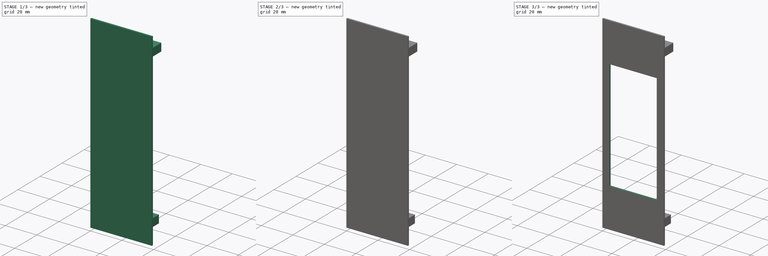
[diagram: build sequence overview — one tinted view per stage of 3, left to right]
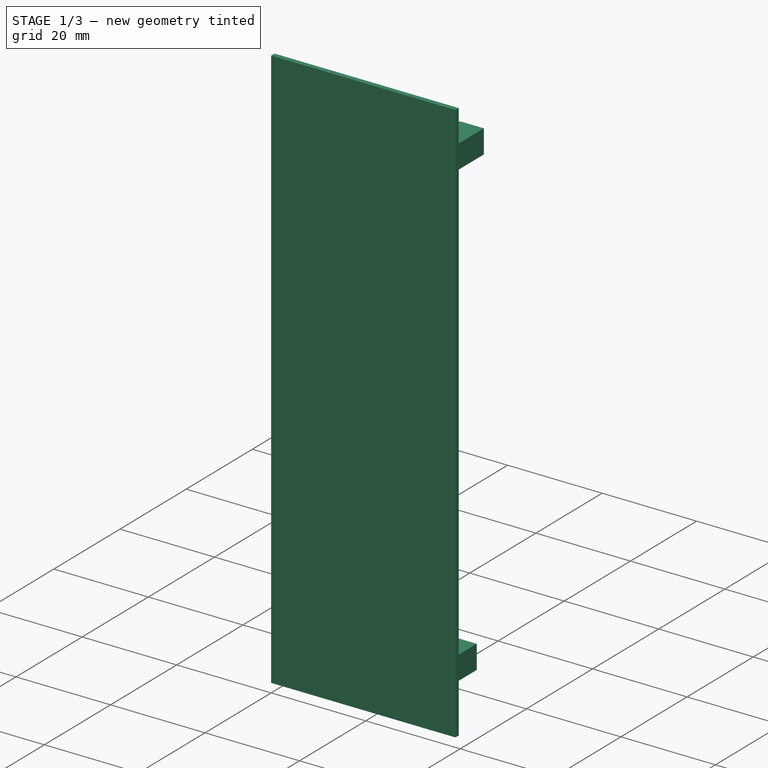
[diagram: stage 1 of 3 — iso view after this stage's code; geometry added in this stage tinted green]
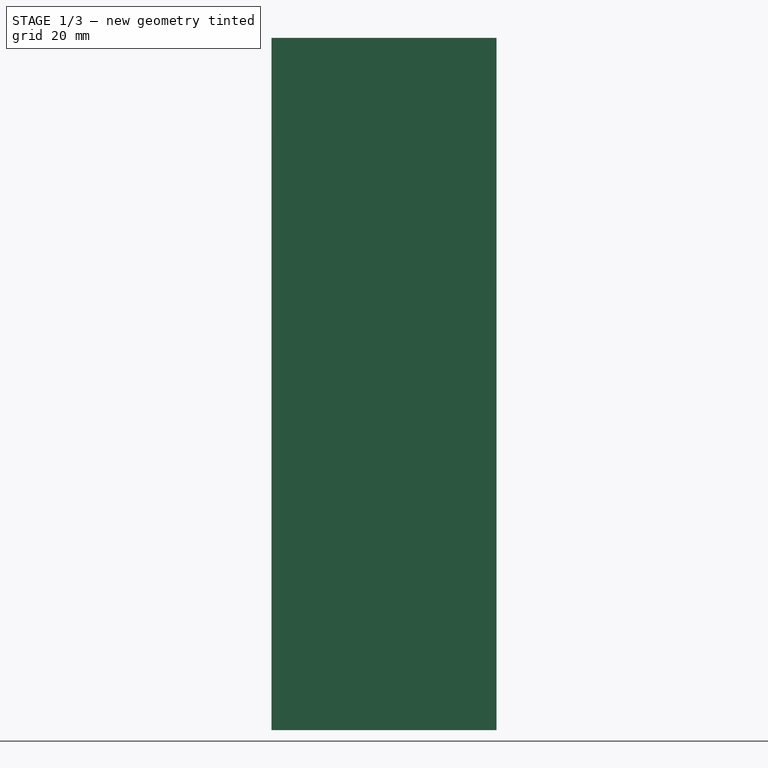
[diagram: stage 1 of 3 — front view after this stage's code; geometry added in this stage tinted green]
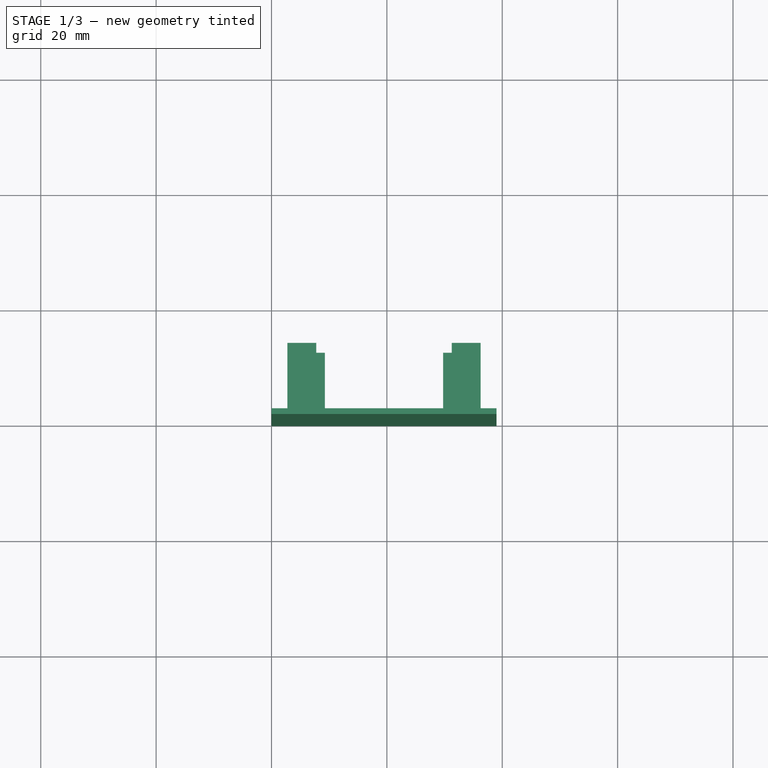
[diagram: stage 1 of 3 — top view after this stage's code; geometry added in this stage tinted green]
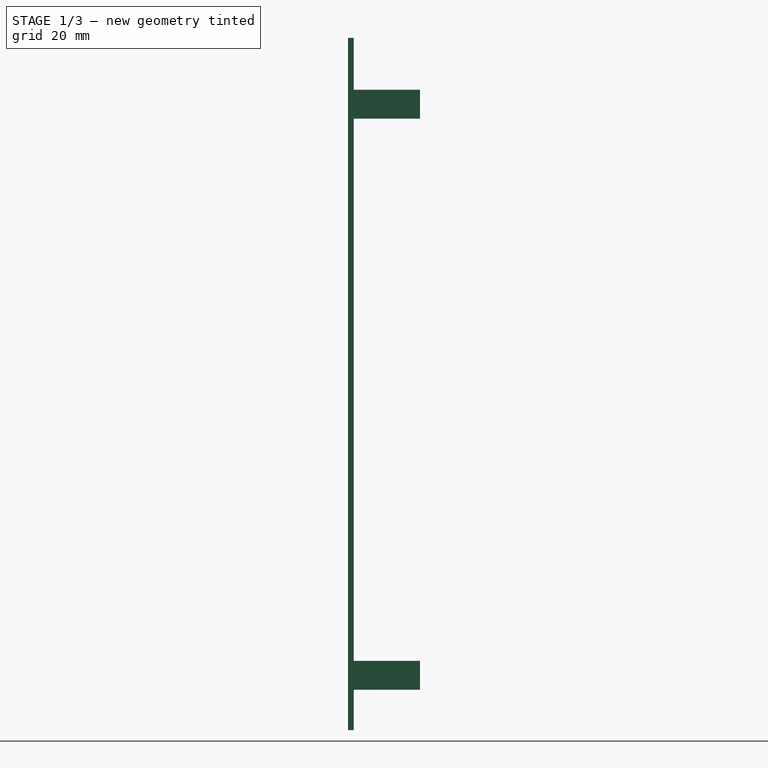
[diagram: stage 1 of 3 — right view after this stage's code; geometry added in this stage tinted green]
FCSTD DOCUMENT  (FreeCAD 0.16R6712 (Git))
Label: Support_Servo_Arrieres
License: All rights reserved
LicenseURL: http://en.wikipedia.org/wiki/All_rights_reserved
objects: Sketcher::SketchObject×5, PartDesign::Pocket×3, PartDesign::Pad×2
note: 15 computed .brp shape members not serialized (recipe doc carries the construction recipe); baked Part::Feature solids carry a one-line shape summary decoded from their .brp

FEATURE [Sketcher::SketchObject] Sketch
  sketch-geometry (4):
    g0: LineSegment StartX=0 StartY=0 StartZ=0 EndX=39 EndY=0 EndZ=0
    g1: LineSegment StartX=39 StartY=0 StartZ=0 EndX=39 EndY=1 EndZ=0
    g2: LineSegment StartX=39 StartY=1 StartZ=0 EndX=0 EndY=1 EndZ=0
    g3: LineSegment StartX=0 StartY=1 StartZ=0 EndX=0 EndY=0 EndZ=0
  constraints (11):
    c: Coincident(g0,g1)
    c: Coincident(g1,g2)
    c: Coincident(g2,g3)
    c: Coincident(g3,g0)
    c: Horizontal(g0)
    c: Horizontal(g2)
    c: Vertical(g1)
    c: Vertical(g3)
    c: Coincident(g0,g-1)
    c: DistanceY(g3,g3) = 1
    c: DistanceX(g2,g2) = 39
FEATURE [PartDesign::Pad] Pad
  Length = 120
  Length2 = 100
  Sketch = -> Sketch
  Type = 0
FEATURE [Sketcher::SketchObject] Sketch001
  ExternalGeometry = -> [Pad]
  Placement = pos=(0,1,0) rot=(0,0.707107,0.707107;3.14159rad)
  Support = -> Pad [Face3]
  sketch-geometry (19):
    g0: LineSegment StartX=-36.25 StartY=111 StartZ=0 EndX=-31.25 EndY=111 EndZ=0
    g1: LineSegment StartX=-31.25 StartY=111 StartZ=0 EndX=-31.25 EndY=106 EndZ=0
    g2: LineSegment StartX=-31.25 StartY=106 StartZ=0 EndX=-36.25 EndY=106 EndZ=0
    g3: LineSegment StartX=-36.25 StartY=106 StartZ=0 EndX=-36.25 EndY=111 EndZ=0
    g4: LineSegment StartX=-2.75 StartY=111 StartZ=0 EndX=-7.75 EndY=111 EndZ=0
    g5: LineSegment StartX=-7.75 StartY=111 StartZ=0 EndX=-7.75 EndY=106 EndZ=0
    g6: LineSegment StartX=-7.75 StartY=106 StartZ=0 EndX=-2.75 EndY=106 EndZ=0
    g7: LineSegment StartX=-2.75 StartY=106 StartZ=0 EndX=-2.75 EndY=111 EndZ=0
    g8: LineSegment StartX=-34.75 StartY=12 StartZ=0 EndX=-29.75 EndY=12 EndZ=0
    g9: LineSegment StartX=-29.75 StartY=12 StartZ=0 EndX=-29.75 EndY=7 EndZ=0
    g10: LineSegment StartX=-29.75 StartY=7 StartZ=0 EndX=-34.75 EndY=7 EndZ=0
    g11: LineSegment StartX=-34.75 StartY=7 StartZ=0 EndX=-34.75 EndY=12 EndZ=0
    g12: LineSegment StartX=-9.25 StartY=12 StartZ=0 EndX=-4.25 EndY=12 EndZ=0
    g13: LineSegment StartX=-4.25 StartY=12 StartZ=0 EndX=-4.25 EndY=7 EndZ=0
    g14: LineSegment StartX=-4.25 StartY=7 StartZ=0 EndX=-9.25 EndY=7 EndZ=0
    g15: LineSegment StartX=-9.25 StartY=7 StartZ=0 EndX=-9.25 EndY=12 EndZ=0
    g16: LineSegment [constr] StartX=-31.25 StartY=111 StartZ=0 EndX=-2.75 EndY=111 EndZ=0
    g17: LineSegment [constr] StartX=-19.5 StartY=120 StartZ=0 EndX=-19.5 EndY=0 EndZ=0
    g18: LineSegment [constr] StartX=-29.75 StartY=7 StartZ=0 EndX=-9.25 EndY=7 EndZ=0
  constraints (55):
    c: Coincident(g0,g1)
    c: Coincident(g1,g2)
    c: Coincident(g2,g3)
    c: Coincident(g3,g0)
    c: Horizontal(g0)
    c: Horizontal(g2)
    c: Vertical(g1)
    c: Vertical(g3)
    c: Coincident(g4,g5)
    c: Coincident(g5,g6)
    c: Coincident(g6,g7)
    c: Coincident(g7,g4)
    c: Horizontal(g4)
    c: Horizontal(g6)
    c: Vertical(g5)
    c: Vertical(g7)
    c: Coincident(g8,g9)
    c: Coincident(g9,g10)
    c: Coincident(g10,g11)
    c: Coincident(g11,g8)
    c: Horizontal(g8)
    c: Horizontal(g10)
    c: Vertical(g9)
    c: Vertical(g11)
    c: Coincident(g12,g13)
    c: Coincident(g13,g14)
    c: Coincident(g14,g15)
    c: Coincident(g15,g12)
    c: Horizontal(g12)
    c: Horizontal(g14)
    c: Vertical(g13)
    c: Vertical(g15)
    c: Coincident(g16,g0)
    c: Coincident(g16,g4)
    c: Horizontal(g16)
    c: DistanceY(g0,g-3) = 9
    c: PointOnObject(g17,g-3)
    c: PointOnObject(g17,g-1)
    c: Symmetric(g-3,g-3,g17)
    c: Symmetric(g4,g0,g17)
    c: DistanceX(g0,g0) = 5
    c: DistanceX(g4,g4) = 5
    c: DistanceY(g1,g1) = 5
    c: DistanceY(g5,g5) = 5
    c: DistanceX(g10,g10) = 5
    c: DistanceX(g14,g14) = 5
    c: DistanceY(g9,g9) = 5
    c: DistanceY(g13,g13) = 5
    c: Coincident(g18,g9)
    c: Coincident(g18,g14)
    c: Horizontal(g18)
    c: Symmetric(g9,g14,g17)
    c: DistanceX(g18,g18) = 20.5
    c: DistanceX(g0,g4) = 23.5
    c: DistanceY(g17,g9) = 7
FEATURE [PartDesign::Pad] Pad001
  Length = 11.5
  Length2 = 100
  Sketch = -> Sketch001
  Type = 0
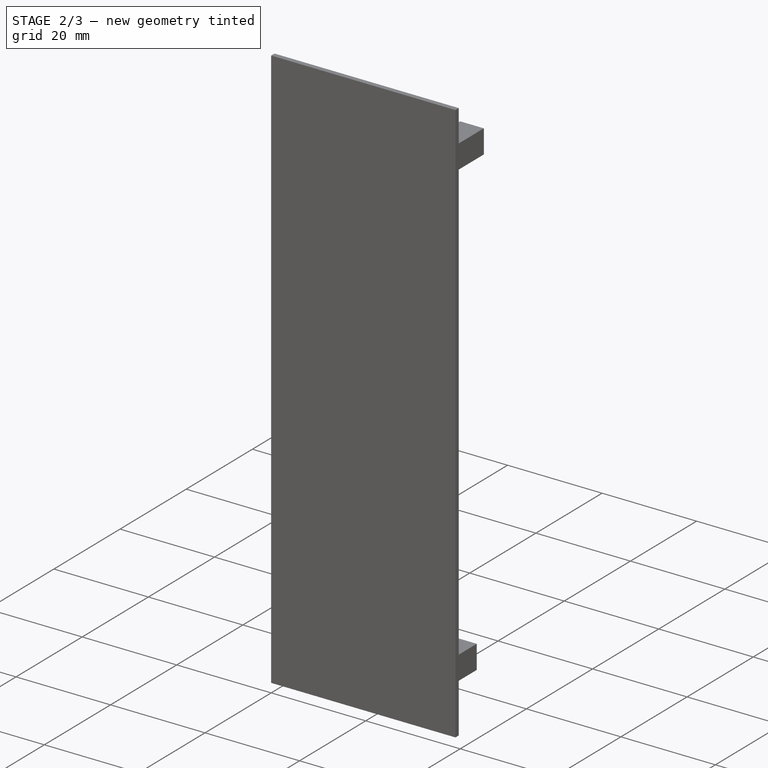
[diagram: stage 2 of 3 — iso view after this stage's code; geometry added in this stage tinted green]
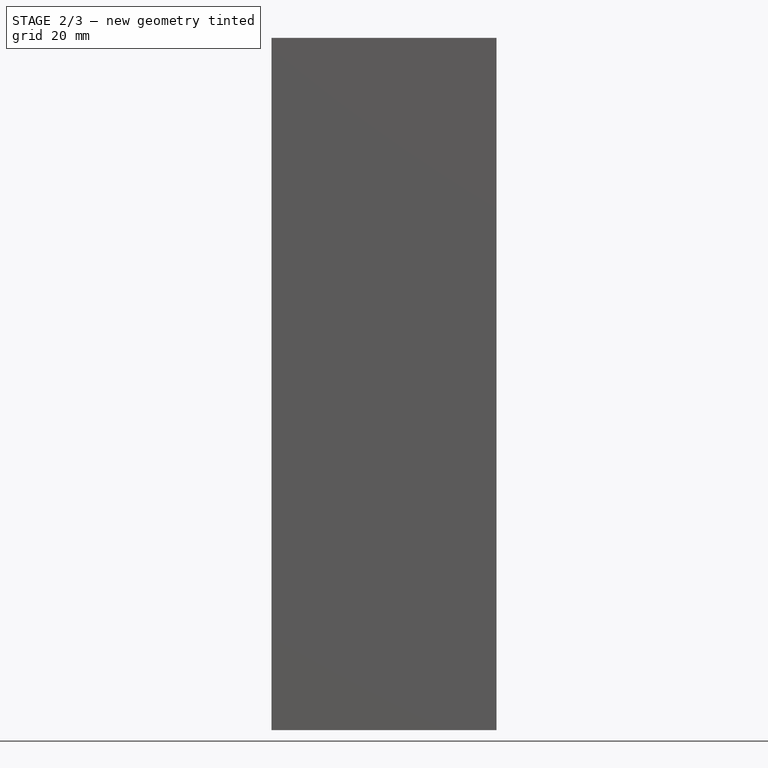
[diagram: stage 2 of 3 — front view after this stage's code; geometry added in this stage tinted green]
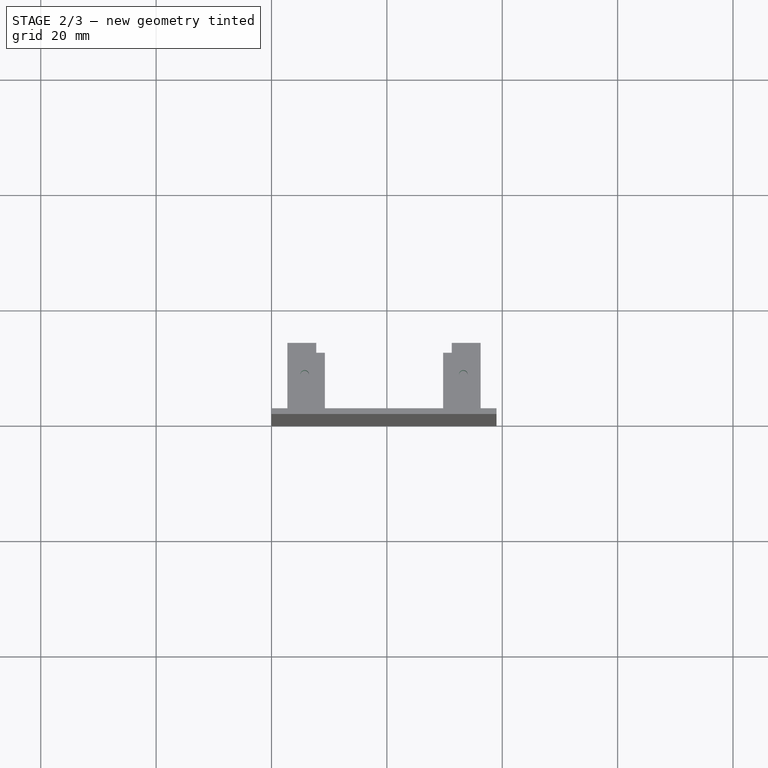
[diagram: stage 2 of 3 — top view after this stage's code; geometry added in this stage tinted green]
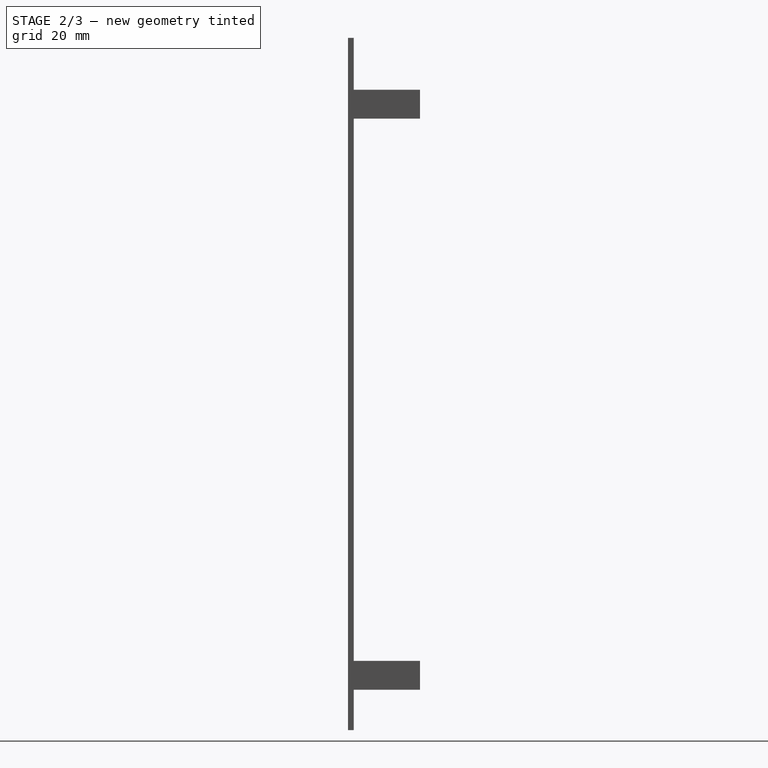
[diagram: stage 2 of 3 — right view after this stage's code; geometry added in this stage tinted green]
FEATURE [Sketcher::SketchObject] Sketch003
  ExternalGeometry = -> [Pad001]
  Placement = pos=(0,0,111) rot=(0,0,1;0rad)
  Support = -> Pad001 [Face21]
  sketch-geometry (3):
    g0: Circle CenterX=5.75 CenterY=7 CenterZ=0 NormalX=0 NormalY=0 NormalZ=1 Radius=0.75
    g1: Circle CenterX=33.25 CenterY=7 CenterZ=0 NormalX=0 NormalY=0 NormalZ=1 Radius=0.75
    g2: LineSegment [constr] StartX=33.25 StartY=7 StartZ=0 EndX=5.75 EndY=7 EndZ=0
  constraints (8):
    c: Coincident(g2,g0)
    c: Horizontal(g2)
    c: Coincident(g1,g2)
    c: DistanceX(g2,g2) = 27.5
    c: Radius(g0) = 0.75
    c: Equal(g0,g1)
    c: DistanceY(g-3,g1) = 6
    c: DistanceX(g-3,g1) = 2
FEATURE [PartDesign::Pocket] Pocket
  Length = 5
  Sketch = -> Sketch003
  Type = 0
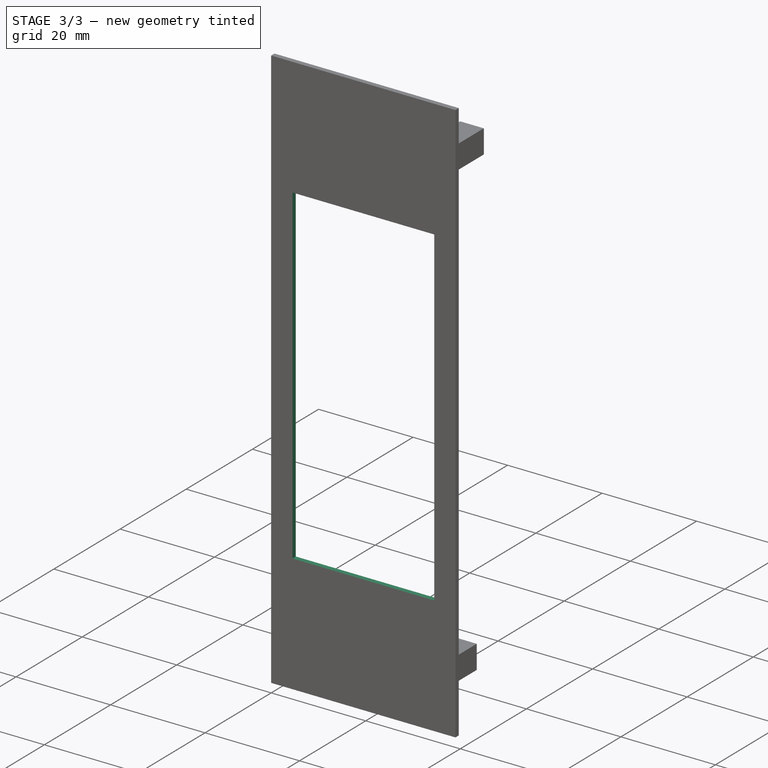
[diagram: stage 3 of 3 — iso view after this stage's code; geometry added in this stage tinted green]
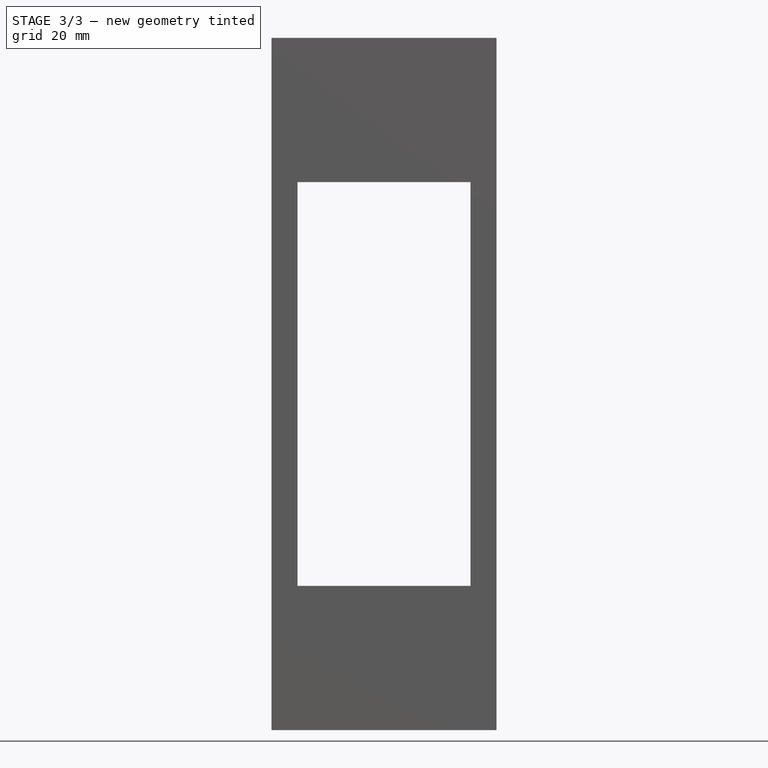
[diagram: stage 3 of 3 — front view after this stage's code; geometry added in this stage tinted green]
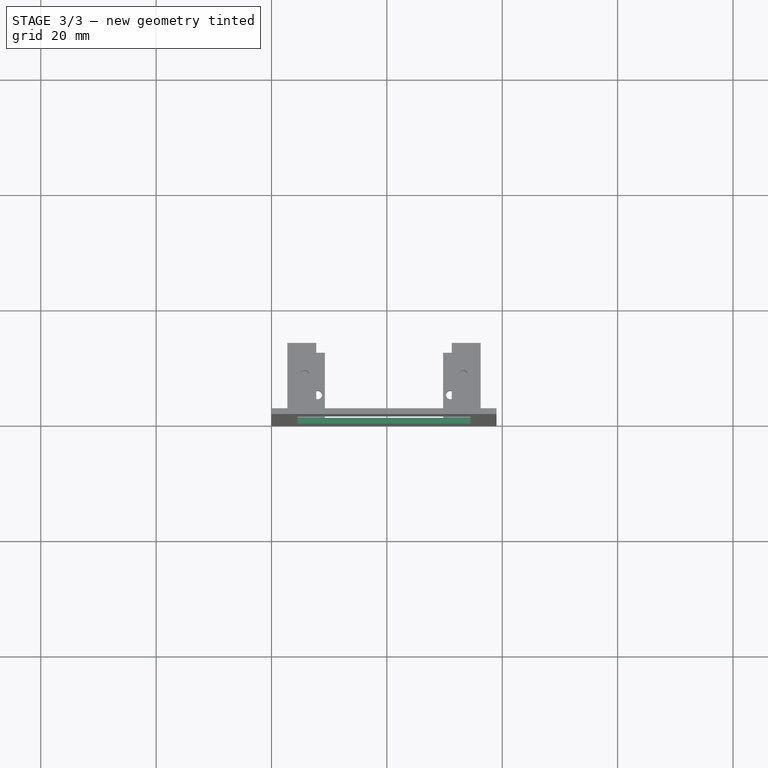
[diagram: stage 3 of 3 — top view after this stage's code; geometry added in this stage tinted green]
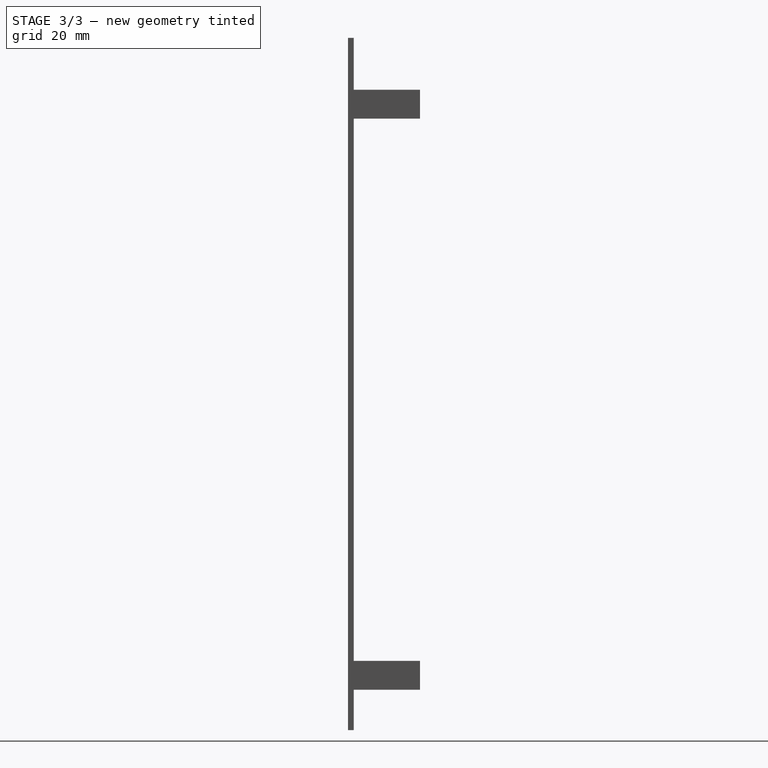
[diagram: stage 3 of 3 — right view after this stage's code; geometry added in this stage tinted green]
FEATURE [Sketcher::SketchObject] Sketch002
  ExternalGeometry = -> [Pad001,Pocket]
  Placement = pos=(0,0,7) rot=(1,0,0;3.14159rad)
  Support = -> Pocket [Face10]
  sketch-geometry (3):
    g0: Circle CenterX=31 CenterY=-5.2 CenterZ=0 NormalX=0 NormalY=0 NormalZ=1 Radius=0.75
    g1: Circle CenterX=8 CenterY=-5.2 CenterZ=0 NormalX=0 NormalY=0 NormalZ=1 Radius=0.75
    g2: LineSegment [constr] StartX=8 StartY=-5.2 StartZ=0 EndX=31 EndY=-5.2 EndZ=0
  constraints (8):
    c: DistanceX(g1,g0) = 23
    c: DistanceY(g1,g-4) = 4.2
    c: Coincident(g2,g1)
    c: Horizontal(g2)
    c: Coincident(g0,g2)
    c: Radius(g1) = 0.75
    c: Equal(g1,g0)
    c: DistanceX(g-5,g0) = 1.25
FEATURE [PartDesign::Pocket] Pocket001
  Length = 5
  Sketch = -> Sketch002
  Type = 0
FEATURE [Sketcher::SketchObject] Sketch004
  ExternalGeometry = -> [Pocket001]
  Placement = pos=(0,1,0) rot=(0,0.707107,0.707107;3.14159rad)
  Support = -> Pocket001 [Face6]
  sketch-geometry (6):
    g0: LineSegment StartX=-34.5 StartY=95 StartZ=0 EndX=-4.5 EndY=95 EndZ=0
    g1: LineSegment StartX=-4.5 StartY=95 StartZ=0 EndX=-4.5 EndY=25 EndZ=0
    g2: LineSegment StartX=-4.5 StartY=25 StartZ=0 EndX=-34.5 EndY=25 EndZ=0
    g3: LineSegment StartX=-34.5 StartY=25 StartZ=0 EndX=-34.5 EndY=95 EndZ=0
    g4: LineSegment [constr] StartX=-19.5 StartY=120 StartZ=0 EndX=-19.5 EndY=0 EndZ=0
    g5: LineSegment [constr] StartX=-39 StartY=60 StartZ=0 EndX=0 EndY=60 EndZ=0
  constraints (18):
    c: Coincident(g0,g1)
    c: Coincident(g1,g2)
    c: Coincident(g2,g3)
    c: Coincident(g3,g0)
    c: Horizontal(g0)
    c: Horizontal(g2)
    c: Vertical(g1)
    c: Vertical(g3)
    c: PointOnObject(g4,g-3)
    c: Symmetric(g-4,g-3,g4)
    c: Symmetric(g0,g0,g4)
    c: PointOnObject(g5,g-4)
    c: PointOnObject(g5,g-2)
    c: Symmetric(g-4,g-4,g5)
    c: Symmetric(g1,g0,g5)
    c: DistanceY(g1,g1) = 70
    c: DistanceX(g2,g2) = 30
    c: PointOnObject(g4,g-1)
FEATURE [PartDesign::Pocket] Pocket002
  Length = 5
  Sketch = -> Sketch004
  Type = 0
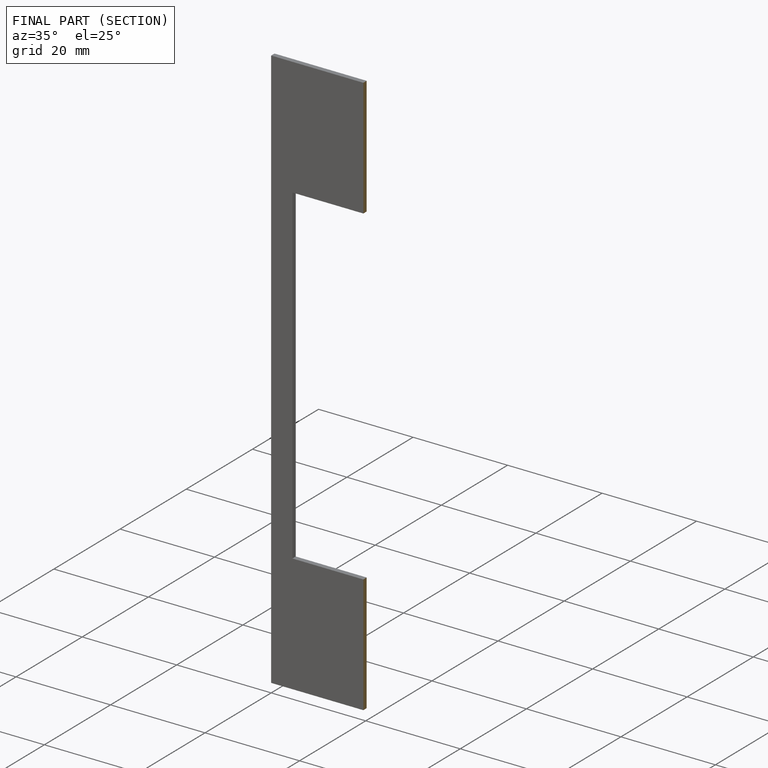
[diagram: finished part — half-section view (interior)]
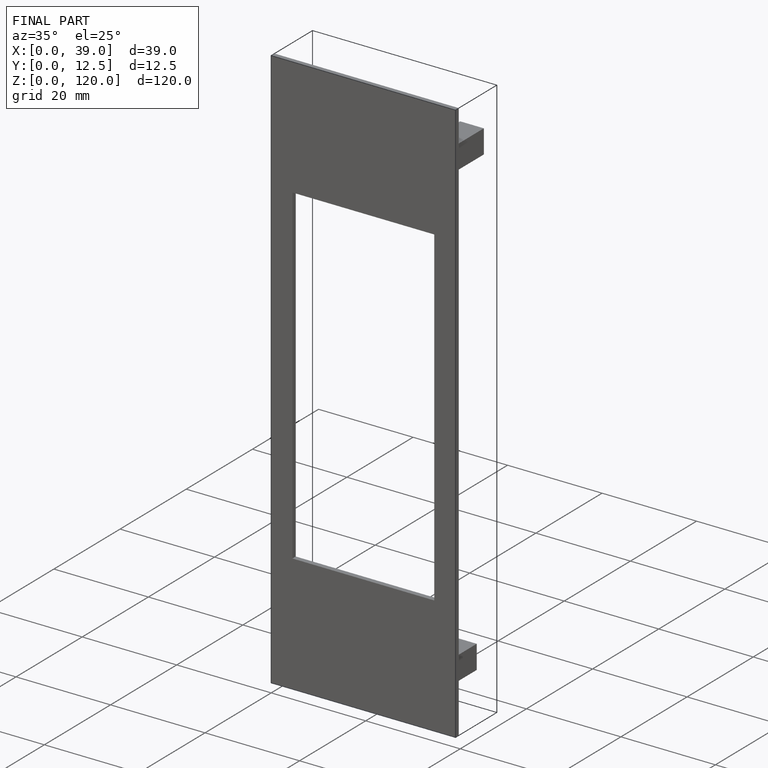
[diagram: finished part — iso view with bounding-box wireframe]
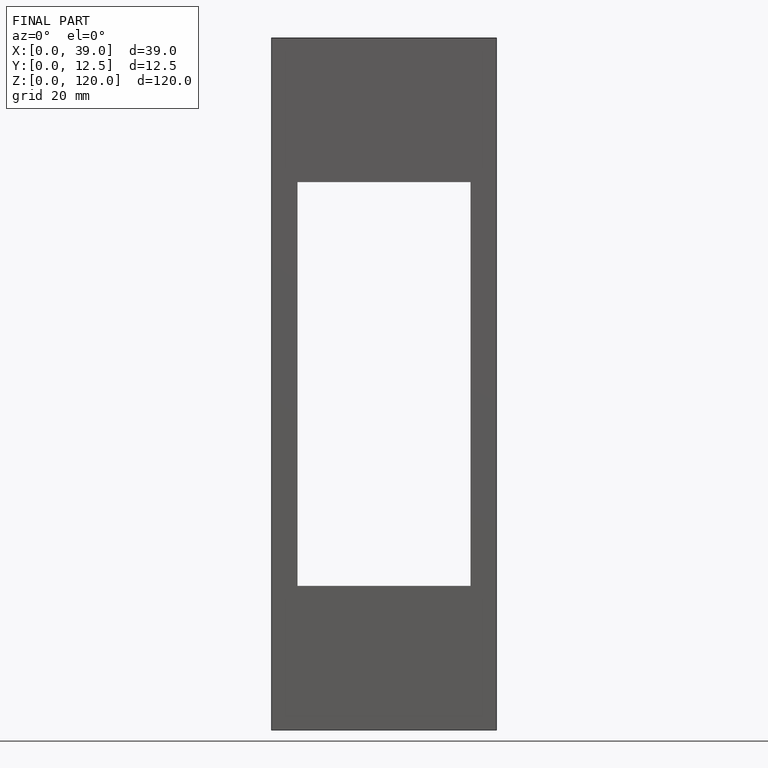
[diagram: finished part — front view with bounding-box wireframe]
